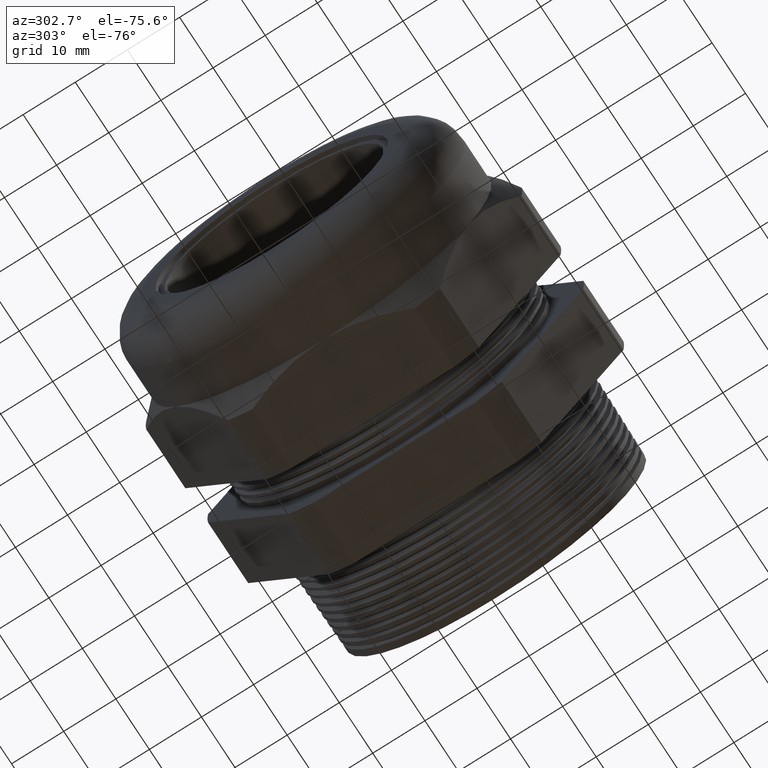
[diagram: clean part render]
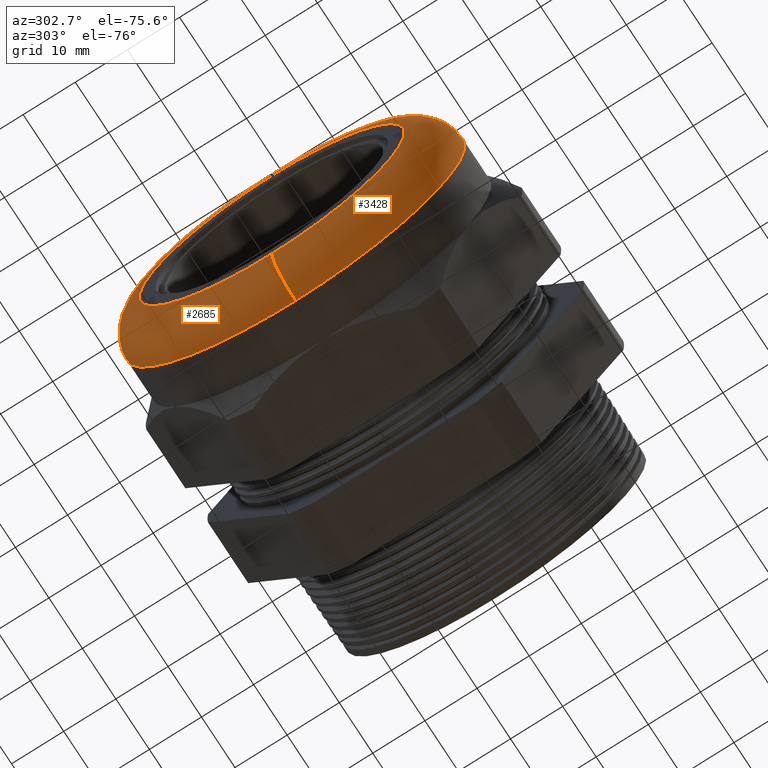
[diagram: same view with one multi-face feature highlighted, each face labeled with its STEP entity id]
A machine part, auxiliary view. The highlighted faces form ONE feature: a constant-radius fillet chain: 2 tangent blend faces with common blend radius 7.112 mm. The faces share edges in the B-rep.
Their STEP definitions:
[1] entity #3428 (Torus):
#398 = CARTESIAN_POINT ( 'NONE',  ( -1.959999999999999500, 0.0000000000000000000, -1.280000000000000000 ) ) ;
#399 = DIRECTION ( 'NONE',  ( 0.0000000000000000000, -1.224646799147353000E-016, 1.000000000000000000 ) ) ;
#400 = DIRECTION ( 'NONE',  ( 0.0000000000000000000, 1.000000000000000000, 1.224646799147353200E-016 ) ) ;
#401 = CARTESIAN_POINT ( 'NONE',  ( -1.959999999999999500, 1.224646799147353200E-016, -1.000000000000000000 ) ) ;
#402 = AXIS2_PLACEMENT_3D ( 'NONE', #401, #400, #399 ) ;
#403 = CIRCLE ( 'NONE', #402, 0.2800000000000000300 ) ;
#477 = DIRECTION ( 'NONE',  ( 0.0000000000000000000, 0.0000000000000000000, -1.000000000000000000 ) ) ;
#478 = DIRECTION ( 'NONE',  ( 0.0000000000000000000, -1.000000000000000000, 0.0000000000000000000 ) ) ;
#479 = CARTESIAN_POINT ( 'NONE',  ( -1.959999999999999500, 0.0000000000000000000, 1.000000000000000000 ) ) ;
#480 = AXIS2_PLACEMENT_3D ( 'NONE', #479, #478, #477 ) ;
#481 = CIRCLE ( 'NONE', #480, 0.2800000000000000300 ) ;
#556 = CARTESIAN_POINT ( 'NONE',  ( -2.239999999999999800, 0.0000000000000000000, 1.000000000000000000 ) ) ;
#621 = CARTESIAN_POINT ( 'NONE',  ( -1.959999999999999500, 1.567547902908612300E-016, 1.280000000000000000 ) ) ;
#622 = CARTESIAN_POINT ( 'NONE',  ( -2.239999999999999800, 1.396097351027982800E-016, -1.000000000000000000 ) ) ;
#1647 = TOROIDAL_SURFACE ( 'NONE', #1712, 1.000000000000000000, 0.2800000000000000300 ) ;
#1651 = FACE_OUTER_BOUND ( 'NONE', #3429, .T. ) ;
#1709 = DIRECTION ( 'NONE',  ( 0.0000000000000000000, 0.0000000000000000000, 1.000000000000000000 ) ) ;
#1710 = DIRECTION ( 'NONE',  ( -1.000000000000000000, 0.0000000000000000000, 0.0000000000000000000 ) ) ;
#1711 = CARTESIAN_POINT ( 'NONE',  ( -1.959999999999999500, 0.0000000000000000000, 0.0000000000000000000 ) ) ;
#1712 = AXIS2_PLACEMENT_3D ( 'NONE', #1711, #1710, #1709 ) ;
#2026 = CARTESIAN_POINT ( 'NONE',  ( -1.959999999999999500, 0.0000000000000000000, 0.0000000000000000000 ) ) ;
#2027 = AXIS2_PLACEMENT_3D ( 'NONE', #2026, #2088, #2087 ) ;
#2028 = CIRCLE ( 'NONE', #2027, 1.280000000000000000 ) ;
#2063 = DIRECTION ( 'NONE',  ( 0.0000000000000000000, 0.0000000000000000000, 1.000000000000000000 ) ) ;
#2064 = DIRECTION ( 'NONE',  ( -1.000000000000000000, 0.0000000000000000000, 0.0000000000000000000 ) ) ;
#2065 = CARTESIAN_POINT ( 'NONE',  ( -2.239999999999999800, 0.0000000000000000000, 0.0000000000000000000 ) ) ;
#2066 = AXIS2_PLACEMENT_3D ( 'NONE', #2065, #2064, #2063 ) ;
#2067 = CIRCLE ( 'NONE', #2066, 1.000000000000000000 ) ;
#2087 = DIRECTION ( 'NONE',  ( 0.0000000000000000000, 0.0000000000000000000, 1.000000000000000000 ) ) ;
#2088 = DIRECTION ( 'NONE',  ( 1.000000000000000000, 0.0000000000000000000, 0.0000000000000000000 ) ) ;
#2722 = EDGE_CURVE ( 'NONE', #2723, #2817, #403, .T. ) ;
#2723 = VERTEX_POINT ( 'NONE', #398 ) ;
#2748 = EDGE_CURVE ( 'NONE', #2818, #2779, #481, .T. ) ;
#2779 = VERTEX_POINT ( 'NONE', #556 ) ;
#2817 = VERTEX_POINT ( 'NONE', #622 ) ;
#2818 = VERTEX_POINT ( 'NONE', #621 ) ;
#3428 = ADVANCED_FACE ( 'NONE', ( #1651 ), #1647, .T. ) ;
#3429 = EDGE_LOOP ( 'NONE', ( #3430, #3431, #3432, #3433 ) ) ;
#3430 = ORIENTED_EDGE ( 'NONE', *, *, #2722, .F. ) ;
#3431 = ORIENTED_EDGE ( 'NONE', *, *, #3775, .F. ) ;
#3432 = ORIENTED_EDGE ( 'NONE', *, *, #2748, .T. ) ;
#3433 = ORIENTED_EDGE ( 'NONE', *, *, #3782, .F. ) ;
#3775 = EDGE_CURVE ( 'NONE', #2818, #2723, #2028, .T. ) ;
#3782 = EDGE_CURVE ( 'NONE', #2817, #2779, #2067, .T. ) ;
[2] entity #2685 (Torus):
#343 = DIRECTION ( 'NONE',  ( 0.0000000000000000000, 0.0000000000000000000, 1.000000000000000000 ) ) ;
#344 = DIRECTION ( 'NONE',  ( -1.000000000000000000, 0.0000000000000000000, 0.0000000000000000000 ) ) ;
#345 = CARTESIAN_POINT ( 'NONE',  ( -1.959999999999999500, 0.0000000000000000000, 0.0000000000000000000 ) ) ;
#346 = AXIS2_PLACEMENT_3D ( 'NONE', #345, #344, #343 ) ;
#348 = TOROIDAL_SURFACE ( 'NONE', #346, 1.000000000000000000, 0.2800000000000000300 ) ;
#349 = FACE_OUTER_BOUND ( 'NONE', #2686, .T. ) ;
#398 = CARTESIAN_POINT ( 'NONE',  ( -1.959999999999999500, 0.0000000000000000000, -1.280000000000000000 ) ) ;
#399 = DIRECTION ( 'NONE',  ( 0.0000000000000000000, -1.224646799147353000E-016, 1.000000000000000000 ) ) ;
#400 = DIRECTION ( 'NONE',  ( 0.0000000000000000000, 1.000000000000000000, 1.224646799147353200E-016 ) ) ;
#401 = CARTESIAN_POINT ( 'NONE',  ( -1.959999999999999500, 1.224646799147353200E-016, -1.000000000000000000 ) ) ;
#402 = AXIS2_PLACEMENT_3D ( 'NONE', #401, #400, #399 ) ;
#403 = CIRCLE ( 'NONE', #402, 0.2800000000000000300 ) ;
#477 = DIRECTION ( 'NONE',  ( 0.0000000000000000000, 0.0000000000000000000, -1.000000000000000000 ) ) ;
#478 = DIRECTION ( 'NONE',  ( 0.0000000000000000000, -1.000000000000000000, 0.0000000000000000000 ) ) ;
#479 = CARTESIAN_POINT ( 'NONE',  ( -1.959999999999999500, 0.0000000000000000000, 1.000000000000000000 ) ) ;
#480 = AXIS2_PLACEMENT_3D ( 'NONE', #479, #478, #477 ) ;
#481 = CIRCLE ( 'NONE', #480, 0.2800000000000000300 ) ;
#490 = DIRECTION ( 'NONE',  ( -1.000000000000000000, 0.0000000000000000000, 0.0000000000000000000 ) ) ;
#491 = AXIS2_PLACEMENT_3D ( 'NONE', #499, #490, #557 ) ;
#492 = CIRCLE ( 'NONE', #491, 1.000000000000000000 ) ;
#499 = CARTESIAN_POINT ( 'NONE',  ( -2.239999999999999800, 0.0000000000000000000, 0.0000000000000000000 ) ) ;
#556 = CARTESIAN_POINT ( 'NONE',  ( -2.239999999999999800, 0.0000000000000000000, 1.000000000000000000 ) ) ;
#557 = DIRECTION ( 'NONE',  ( 0.0000000000000000000, 0.0000000000000000000, 1.000000000000000000 ) ) ;
#621 = CARTESIAN_POINT ( 'NONE',  ( -1.959999999999999500, 1.567547902908612300E-016, 1.280000000000000000 ) ) ;
#622 = CARTESIAN_POINT ( 'NONE',  ( -2.239999999999999800, 1.396097351027982800E-016, -1.000000000000000000 ) ) ;
#2224 = DIRECTION ( 'NONE',  ( 0.0000000000000000000, 0.0000000000000000000, 1.000000000000000000 ) ) ;
#2225 = DIRECTION ( 'NONE',  ( 1.000000000000000000, 0.0000000000000000000, 0.0000000000000000000 ) ) ;
#2226 = CARTESIAN_POINT ( 'NONE',  ( -1.959999999999999500, 0.0000000000000000000, 0.0000000000000000000 ) ) ;
#2227 = AXIS2_PLACEMENT_3D ( 'NONE', #2226, #2225, #2224 ) ;
#2228 = CIRCLE ( 'NONE', #2227, 1.280000000000000000 ) ;
#2685 = ADVANCED_FACE ( 'NONE', ( #349 ), #348, .T. ) ;
#2686 = EDGE_LOOP ( 'NONE', ( #2687, #2777, #2765, #2747 ) ) ;
#2687 = ORIENTED_EDGE ( 'NONE', *, *, #3887, .F. ) ;
#2722 = EDGE_CURVE ( 'NONE', #2723, #2817, #403, .T. ) ;
#2723 = VERTEX_POINT ( 'NONE', #398 ) ;
#2747 = ORIENTED_EDGE ( 'NONE', *, *, #2748, .F. ) ;
#2748 = EDGE_CURVE ( 'NONE', #2818, #2779, #481, .T. ) ;
#2765 = ORIENTED_EDGE ( 'NONE', *, *, #2778, .F. ) ;
#2777 = ORIENTED_EDGE ( 'NONE', *, *, #2722, .T. ) ;
#2778 = EDGE_CURVE ( 'NONE', #2779, #2817, #492, .T. ) ;
#2779 = VERTEX_POINT ( 'NONE', #556 ) ;
#2817 = VERTEX_POINT ( 'NONE', #622 ) ;
#2818 = VERTEX_POINT ( 'NONE', #621 ) ;
#3887 = EDGE_CURVE ( 'NONE', #2723, #2818, #2228, .T. ) ;